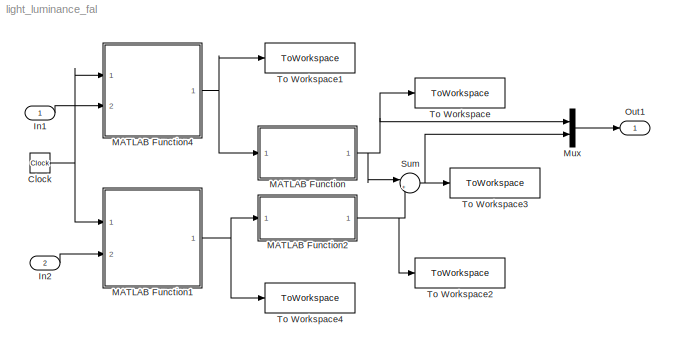
MODEL light_luminance_fal
KIND model
BLOCK [Clock] Clock
  SID = 109
BLOCK [Inport] In1
  IconDisplay = Port number
  SID = 414
BLOCK [Inport] In2
  IconDisplay = Port number
  Port = 2
  SID = 415
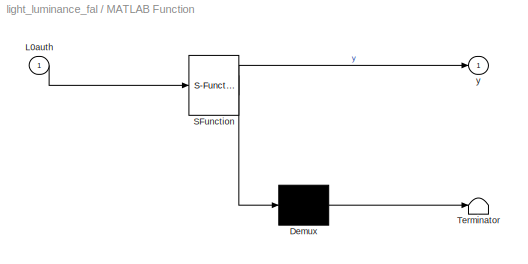
BLOCK [SubSystem] MATLAB Function
  ErrorFcn = Stateflow.Translate.translate
  PermitHierarchicalResolution = ExplicitOnly
  Ports = [1, 1]
  RequestExecContextInheritance = off
  SFBlockType = MATLAB Function
  SID = 405
  TreatAsAtomicUnit = on
BLOCK [Demux] MATLAB Function/ Demux 
  Outputs = 1
  Ports = [1, 1]
  SID = 405::20
BLOCK [S-Function] MATLAB Function/ SFunction 
  EnableBusSupport = on
  FunctionName = sf_sfun
  Parameters = disLightSource
  PortCounts = [1 2]
  Ports = [1, 2]
  SFcnIsStateOwnerBlock = off
  SFunctionDeploymentMode = off
  SID = 405::19
  Tag = Stateflow S-Function 2
BLOCK [Terminator] MATLAB Function/ Terminator 
  SID = 405::21
BLOCK [Inport] MATLAB Function/L0auth
  IconDisplay = Port number
  SID = 405::1
BLOCK [Outport] MATLAB Function/y
  IconDisplay = Port number
  SID = 405::5
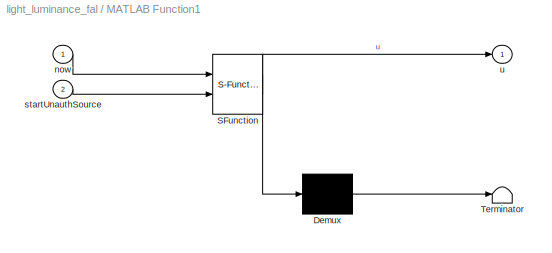
BLOCK [SubSystem] MATLAB Function1
  ErrorFcn = Stateflow.Translate.translate
  PermitHierarchicalResolution = ExplicitOnly
  Ports = [2, 1]
  RequestExecContextInheritance = off
  SFBlockType = MATLAB Function
  SID = 407
  TreatAsAtomicUnit = on
BLOCK [Demux] MATLAB Function1/ Demux 
  Outputs = 1
  Ports = [1, 1]
  SID = 407::20
BLOCK [S-Function] MATLAB Function1/ SFunction 
  EnableBusSupport = on
  FunctionName = sf_sfun
  Parameters = L0SourceTV,timeUnauthSource
  PortCounts = [2 2]
  Ports = [2, 2]
  SFcnIsStateOwnerBlock = off
  SFunctionDeploymentMode = off
  SID = 407::19
  Tag = Stateflow S-Function 1
BLOCK [Terminator] MATLAB Function1/ Terminator 
  SID = 407::21
BLOCK [Inport] MATLAB Function1/now
  IconDisplay = Port number
  SID = 407::27
BLOCK [Inport] MATLAB Function1/startUnauthSource
  IconDisplay = Port number
  Port = 2
  SID = 407::31
BLOCK [Outport] MATLAB Function1/u
  IconDisplay = Port number
  SID = 407::5
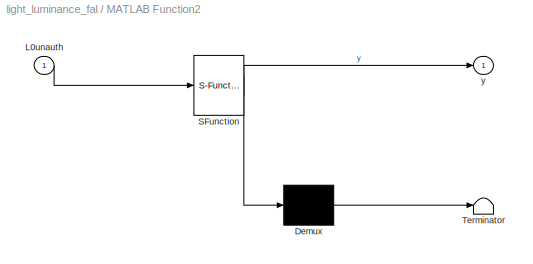
BLOCK [SubSystem] MATLAB Function2
  ErrorFcn = Stateflow.Translate.translate
  PermitHierarchicalResolution = ExplicitOnly
  Ports = [1, 1]
  RequestExecContextInheritance = off
  SFBlockType = MATLAB Function
  SID = 409
  TreatAsAtomicUnit = on
BLOCK [Demux] MATLAB Function2/ Demux 
  Outputs = 1
  Ports = [1, 1]
  SID = 409::20
BLOCK [S-Function] MATLAB Function2/ SFunction 
  EnableBusSupport = on
  FunctionName = sf_sfun
  Parameters = disUnauthLightSource
  PortCounts = [1 2]
  Ports = [1, 2]
  SFcnIsStateOwnerBlock = off
  SFunctionDeploymentMode = off
  SID = 409::19
  Tag = Stateflow S-Function 3
BLOCK [Terminator] MATLAB Function2/ Terminator 
  SID = 409::21
BLOCK [Inport] MATLAB Function2/L0unauth
  IconDisplay = Port number
  SID = 409::1
BLOCK [Outport] MATLAB Function2/y
  IconDisplay = Port number
  SID = 409::5
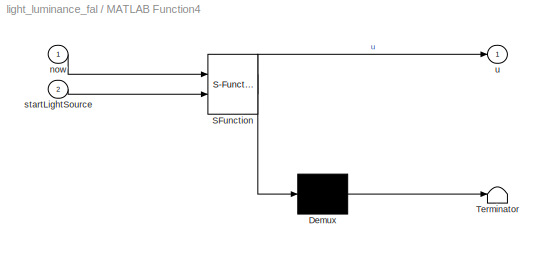
BLOCK [SubSystem] MATLAB Function4
  ErrorFcn = Stateflow.Translate.translate
  PermitHierarchicalResolution = ExplicitOnly
  Ports = [2, 1]
  RequestExecContextInheritance = off
  SFBlockType = MATLAB Function
  SID = 108
  TreatAsAtomicUnit = on
BLOCK [Demux] MATLAB Function4/ Demux 
  Outputs = 1
  Ports = [1, 1]
  SID = 108::20
BLOCK [S-Function] MATLAB Function4/ SFunction 
  EnableBusSupport = on
  FunctionName = sf_sfun
  Parameters = L0Source1,timeLightSource
  PortCounts = [2 2]
  Ports = [2, 2]
  SFcnIsStateOwnerBlock = off
  SFunctionDeploymentMode = off
  SID = 108::19
  Tag = Stateflow S-Function 5
BLOCK [Terminator] MATLAB Function4/ Terminator 
  SID = 108::21
BLOCK [Inport] MATLAB Function4/now
  IconDisplay = Port number
  SID = 108::27
BLOCK [Inport] MATLAB Function4/startLightSource
  IconDisplay = Port number
  Port = 2
  SID = 108::31
BLOCK [Outport] MATLAB Function4/u
  IconDisplay = Port number
  SID = 108::5
BLOCK [Mux] Mux
  DisplayOption = bar
  Inputs = 2
  Ports = [2, 1]
  SID = 416
BLOCK [Outport] Out1
  IconDisplay = Port number
  SID = 417
BLOCK [Sum] Sum
  IconShape = round
  InputSameDT = off
  Inputs = |++
  OutDataTypeStr = Inherit: Inherit via internal rule
  Ports = [2, 1]
  SID = 410
  SaturateOnIntegerOverflow = off
BLOCK [ToWorkspace] To Workspace
  FixptAsFi = on
  MaxDataPoints = inf
  Ports = [1]
  SID = 93
  SampleTime = -1
  VariableName = lampLight
BLOCK [ToWorkspace] To Workspace1
  FixptAsFi = on
  MaxDataPoints = inf
  Ports = [1]
  SID = 406
  SampleTime = -1
  VariableName = LampOn
BLOCK [ToWorkspace] To Workspace2
  FixptAsFi = on
  MaxDataPoints = inf
  Ports = [1]
  SID = 411
  SampleTime = -1
  VariableName = unauthLight
BLOCK [ToWorkspace] To Workspace3
  FixptAsFi = on
  MaxDataPoints = inf
  Ports = [1]
  SID = 412
  SampleTime = -1
  VariableName = totLight
BLOCK [ToWorkspace] To Workspace4
  FixptAsFi = on
  MaxDataPoints = inf
  Ports = [1]
  SID = 413
  SampleTime = -1
  VariableName = UnauthSourceOn
NET Clock:1 -> MATLAB Function1:1, MATLAB Function4:1
LINE In1:1 -> MATLAB Function4:2
LINE In2:1 -> MATLAB Function1:2
LINE MATLAB Function/ Demux :1 -> MATLAB Function/ Terminator :1
LINE MATLAB Function/ SFunction :1 -> MATLAB Function/ Demux :1
LINE MATLAB Function/ SFunction :2 -> MATLAB Function/y:1
LINE MATLAB Function/L0auth:1 -> MATLAB Function/ SFunction :1
LINE MATLAB Function1/ Demux :1 -> MATLAB Function1/ Terminator :1
LINE MATLAB Function1/ SFunction :1 -> MATLAB Function1/ Demux :1
LINE MATLAB Function1/ SFunction :2 -> MATLAB Function1/u:1
LINE MATLAB Function1/now:1 -> MATLAB Function1/ SFunction :1
LINE MATLAB Function1/startUnauthSource:1 -> MATLAB Function1/ SFunction :2
NET MATLAB Function1:1 -> MATLAB Function2:1, To Workspace4:1
LINE MATLAB Function2/ Demux :1 -> MATLAB Function2/ Terminator :1
LINE MATLAB Function2/ SFunction :1 -> MATLAB Function2/ Demux :1
LINE MATLAB Function2/ SFunction :2 -> MATLAB Function2/y:1
LINE MATLAB Function2/L0unauth:1 -> MATLAB Function2/ SFunction :1
NET MATLAB Function2:1 -> Sum:2, To Workspace2:1
LINE MATLAB Function4/ Demux :1 -> MATLAB Function4/ Terminator :1
LINE MATLAB Function4/ SFunction :1 -> MATLAB Function4/ Demux :1
LINE MATLAB Function4/ SFunction :2 -> MATLAB Function4/u:1
LINE MATLAB Function4/now:1 -> MATLAB Function4/ SFunction :1
LINE MATLAB Function4/startLightSource:1 -> MATLAB Function4/ SFunction :2
NET MATLAB Function4:1 -> MATLAB Function:1, To Workspace1:1
NET MATLAB Function:1 -> Mux:1, Sum:1, To Workspace:1
LINE Mux:1 -> Out1:1
NET Sum:1 -> Mux:2, To Workspace3:1
note: NET lines group one-source signal fan-out (src -> all destinations, sorted); 1:1 wires keep LINE
CHART MATLAB Function1 states=1 transitions=1
  STATE_LABEL 'eML_blk_kernel()'
CHART MATLAB Function states=1 transitions=1
  STATE_LABEL 'eML_blk_kernel()'
CHART MATLAB Function2 states=1 transitions=1
  STATE_LABEL 'eML_blk_kernel()'
CHART MATLAB Function4 states=1 transitions=1
  STATE_LABEL 'eML_blk_kernel()'
